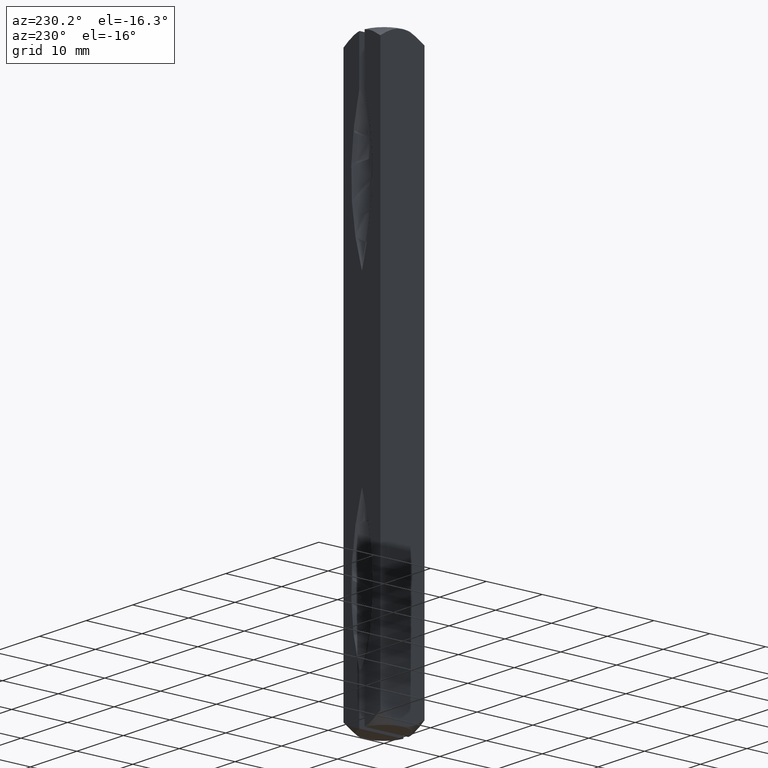
[diagram: clean part render]
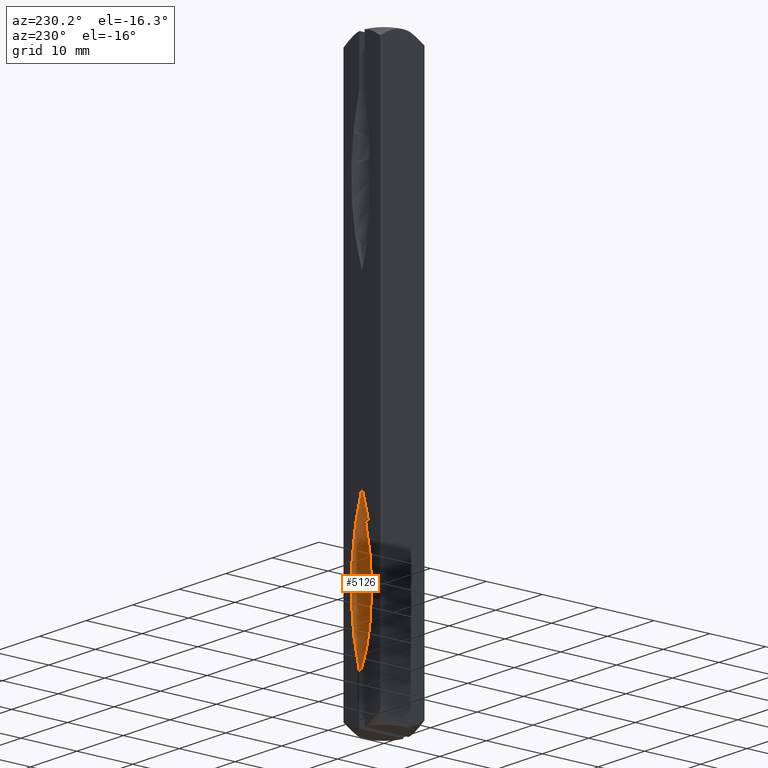
[diagram: same view with one face highlighted and labeled with its STEP entity id]
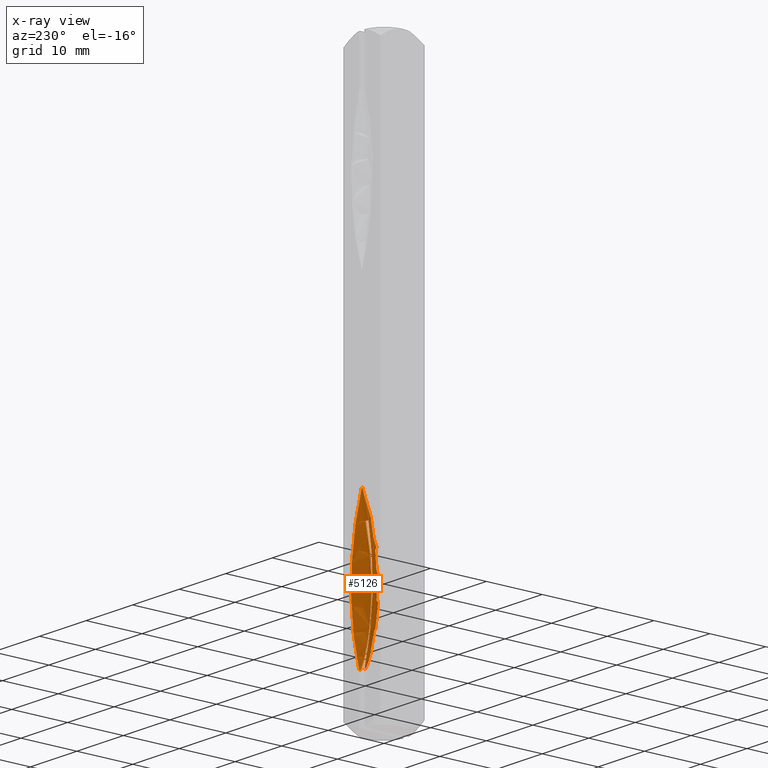
[diagram: x-ray of the same camera — body ghosted, the highlighted face saturated]
A machine part, auxiliary view. The second image highlights one B-rep face of the part: STEP entity #5126.
The next image is the same camera in x-ray: the body ghosted, the highlighted face saturated — about 0% of this face is hidden behind the body in this view.
In plain terms, the highlighted toroidal blend (fillet) surface has major radius 41.4587 mm and minor (blend) radius 43.7587 mm.
Its self-contained STEP definition (entity closure, byte-faithful):
#88 = CARTESIAN_POINT ( 'NONE',  ( 0.5749999999999997335, 2.429968106696501096, -21.78651875056223730 ) ) ;
#290 = CARTESIAN_POINT ( 'NONE',  ( 0.5749999999999996225, 3.418226339073121345, -40.93769629883396277 ) ) ;
#380 = CARTESIAN_POINT ( 'NONE',  ( 0.5749999999999996225, 3.950000000000000178, -41.66519112057019925 ) ) ;
#826 = CARTESIAN_POINT ( 'NONE',  ( -0.5750000000000002887, 1.790522158601205227, -31.89218784807994922 ) ) ;
#873 = CARTESIAN_POINT ( 'NONE',  ( -0.5749999999999999556, 2.999569653012168935, -39.64785277818430131 ) ) ;
#997 = VERTEX_POINT ( 'NONE', #11162 ) ;
#1009 = CARTESIAN_POINT ( 'NONE',  ( 0.5749999999999998446, 2.130042562530008787, -23.58545922957388186 ) ) ;
#1208 = CARTESIAN_POINT ( 'NONE',  ( 0.5749999999999999556, 2.018900622271412537, -34.57466454406282708 ) ) ;
#1400 = CIRCLE ( 'NONE', #6655, 43.75869565217392676 ) ;
#1435 = EDGE_LOOP ( 'NONE', ( #10017, #7549, #2135, #1601, #9818 ) ) ;
#1564 = AXIS2_PLACEMENT_3D ( 'NONE', #4280, #1592, #11255 ) ;
#1592 = DIRECTION ( 'NONE',  ( -1.097926250618232642E-16, 1.000000000000000000, -0.000000000000000000 ) ) ;
#1601 = ORIENTED_EDGE ( 'NONE', *, *, #5082, .T. ) ;
#1757 = CARTESIAN_POINT ( 'NONE',  ( -0.5750000000000000666, 2.656006524776936217, -38.31868199677725073 ) ) ;
#1777 = CARTESIAN_POINT ( 'NONE',  ( 0.000000000000000000, 3.950000000000000178, -20.00000000000000355 ) ) ;
#1786 = CARTESIAN_POINT ( 'NONE',  ( -0.5750000000000000666, 1.717738489092452525, -30.14765667200343913 ) ) ;
#1924 = CARTESIAN_POINT ( 'NONE',  ( 0.5750000000000000666, 1.752741313846989613, -31.10247213723761561 ) ) ;
#2004 = CARTESIAN_POINT ( 'NONE',  ( 0.5749999999999999556, 1.762029260111473983, -31.33131226829906879 ) ) ;
#2047 = CARTESIAN_POINT ( 'NONE',  ( 0.5749999999999996225, 3.714853797911729316, -41.50689434541931178 ) ) ;
#2135 = ORIENTED_EDGE ( 'NONE', *, *, #7399, .T. ) ;
#2366 = CARTESIAN_POINT ( 'NONE',  ( -0.5750000000000002887, 3.568300370325551807, -41.26436420200637656 ) ) ;
#2503 = CARTESIAN_POINT ( 'NONE',  ( -0.5750000000000001776, 2.832976762361322898, -20.00000000000000355 ) ) ;
#2583 = CARTESIAN_POINT ( 'NONE',  ( -0.5750000000000001776, 2.471219910511959661, -37.42595704450668848 ) ) ;
#2606 = VERTEX_POINT ( 'NONE', #3558 ) ;
#2648 = CARTESIAN_POINT ( 'NONE',  ( -0.5750000000000000666, 2.001035175949065437, -24.57484465062620060 ) ) ;
#2750 = CARTESIAN_POINT ( 'NONE',  ( 0.5749999999999998446, 2.011698050703604856, -24.48871964632990483 ) ) ;
#2893 = CARTESIAN_POINT ( 'NONE',  ( 0.5749999999999997335, 1.881233041425730557, -33.18379399691699660 ) ) ;
#2926 = CARTESIAN_POINT ( 'NONE',  ( 0.5749999999999996225, 3.950000000000000178, -41.66519112057019925 ) ) ;
#2972 = CARTESIAN_POINT ( 'NONE',  ( 0.5749999999999999556, 1.784777666526436102, -31.78854486097393206 ) ) ;
#2991 = DIRECTION ( 'NONE',  ( 1.000000000000000000, 1.189288288960203285E-16, 0.000000000000000000 ) ) ;
#3015 = CARTESIAN_POINT ( 'NONE',  ( 0.5749999999999998446, 2.141740618282792052, -35.49938617945537089 ) ) ;
#3493 = CARTESIAN_POINT ( 'NONE',  ( 0.000000000000000000, 3.950000000000000178, -29.50000000000000355 ) ) ;
#3558 = CARTESIAN_POINT ( 'NONE',  ( -0.5750000000000002887, 3.950000000000557066, -41.66519112057266483 ) ) ;
#3575 = CARTESIAN_POINT ( 'NONE',  ( 0.5749999999999998446, 2.610368242112415249, -20.88993279988914509 ) ) ;
#3664 = AXIS2_PLACEMENT_3D ( 'NONE', #1777, #4475, #9034 ) ;
#3717 = CARTESIAN_POINT ( 'NONE',  ( 0.5749999999999999556, 1.715598200974848719, -29.95806234123621792 ) ) ;
#3791 = CARTESIAN_POINT ( 'NONE',  ( 0.5749999999999997335, 3.113908154326070488, -40.05588645929623226 ) ) ;
#4280 = CARTESIAN_POINT ( 'NONE',  ( -41.45869565217392960, 3.949999999999996181, -29.50000000000000355 ) ) ;
#4310 = CARTESIAN_POINT ( 'NONE',  ( -0.5750000000000002887, 1.818738552955122989, -32.34657570468970533 ) ) ;
#4475 = DIRECTION ( 'NONE',  ( 0.000000000000000000, 0.000000000000000000, -1.000000000000000000 ) ) ;
#4502 = FACE_OUTER_BOUND ( 'NONE', #1435, .T. ) ;
#4528 = CARTESIAN_POINT ( 'NONE',  ( 0.5749999999999998446, 1.834091365121487627, -26.30232285982825147 ) ) ;
#4632 = VERTEX_POINT ( 'NONE', #2503 ) ;
#4864 = CARTESIAN_POINT ( 'NONE',  ( -4.336808689942019708E-16, 3.950000000000000178, -15.50000000000000000 ) ) ;
#4907 = VERTEX_POINT ( 'NONE', #380 ) ;
#4909 = AXIS2_PLACEMENT_3D ( 'NONE', #3493, #9737, #8935 ) ;
#4996 = CARTESIAN_POINT ( 'NONE',  ( -0.5750000000000002887, 3.838175792654273000, -41.63303785578739280 ) ) ;
#5082 = EDGE_CURVE ( 'NONE', #6182, #4907, #7444, .T. ) ;
#5094 = EDGE_CURVE ( 'NONE', #2606, #4632, #5673, .T. ) ;
#5119 = CARTESIAN_POINT ( 'NONE',  ( -0.5750000000000001776, 3.752541703626187886, -41.55570475752237058 ) ) ;
#5126 = ADVANCED_FACE ( 'NONE', ( #4502 ), #10822, .F. ) ;
#5526 = CARTESIAN_POINT ( 'NONE',  ( 0.5749999999999998446, 3.891179524348201024, -41.66519112057021346 ) ) ;
#5605 = CARTESIAN_POINT ( 'NONE',  ( 0.5749999999999995115, 3.837430416879069384, -41.63266135821610447 ) ) ;
#5647 = CARTESIAN_POINT ( 'NONE',  ( 0.5749999999999995115, 3.617102303695336918, -41.36165755676435651 ) ) ;
#5673 = B_SPLINE_CURVE_WITH_KNOTS ( 'NONE', 3,
 ( #5980, #10502, #4996, #5119, #8571, #6935, #2366, #9645, #8608, #7758, #873, #1757, #2583, #7986, #10671, #7880, #6241, #4310, #7090, #8867, #826, #11537, #11490, #1786, #7121, #8028, #9845, #2648, #8817, #10624, #6148, #9799 ),
 .UNSPECIFIED., .F., .F.,
 ( 4, 2, 2, 2, 2, 2, 2, 2, 2, 2, 2, 2, 2, 2, 2, 4 ),
 ( 0.04013997765228428938, 0.04031446014983714604, 0.04048894264739000270, 0.04083790764249572297, 0.04153583763270715656, 0.04293169761313001681, 0.04572341757397576506, 0.04851513753482152025, 0.04991099751524438743, 0.05025996251035010076, 0.05060892750545581409, 0.05130685749566724074, 0.05409857745651294042, 0.05689029741735863316, 0.05968201737820433284, 0.06247373733905002557 ),
 .UNSPECIFIED. ) ;
#5980 = CARTESIAN_POINT ( 'NONE',  ( -0.5750000000000002887, 3.950000000000557066, -41.66519112057266483 ) ) ;
#6056 = B_SPLINE_CURVE_WITH_KNOTS ( 'NONE', 3,
 ( #6261, #3575, #88, #1009, #2750, #4528, #6335, #7226, #3717, #1924, #2004, #10961, #2972, #6522, #10999, #2893, #1208, #3015, #9156, #11069, #7460, #3791, #10913, #290, #7375, #5647, #2047, #10056, #5605, #5526, #2926 ),
 .UNSPECIFIED., .F., .F.,
 ( 4, 2, 2, 2, 2, 2, 2, 1, 2, 2, 2, 2, 2, 2, 2, 4 ),
 ( 0.03861330230306312533, 0.04140856419607732986, 0.04420382608909154132, 0.04699908798210574584, 0.04979434987511995037, 0.05049316534837350323, 0.05084257308500027273, 0.05119198082162704916, 0.05258961176813410632, 0.05538487366114823451, 0.05818013555416237659, 0.05957776650066944069, 0.06027658197392297967, 0.06062598971054974917, 0.06080069357886313391, 0.06097539744717651866 ),
 .UNSPECIFIED. ) ;
#6148 = CARTESIAN_POINT ( 'NONE',  ( -0.5750000000000001776, 2.607124633328429475, -20.90289993090307519 ) ) ;
#6182 = VERTEX_POINT ( 'NONE', #4864 ) ;
#6241 = CARTESIAN_POINT ( 'NONE',  ( -0.5750000000000001776, 1.858727775207912103, -32.91580771812270001 ) ) ;
#6261 = CARTESIAN_POINT ( 'NONE',  ( 0.5749999999999997335, 2.832976762361322454, -20.00000000000000355 ) ) ;
#6335 = CARTESIAN_POINT ( 'NONE',  ( 0.5749999999999998446, 1.774965218622260865, -27.21268196257252825 ) ) ;
#6522 = CARTESIAN_POINT ( 'NONE',  ( 0.5750000000000000666, 1.798040783058213021, -32.02138522722812297 ) ) ;
#6655 = AXIS2_PLACEMENT_3D ( 'NONE', #7433, #8207, #2991 ) ;
#6890 = EDGE_CURVE ( 'NONE', #997, #4632, #11365, .T. ) ;
#6935 = CARTESIAN_POINT ( 'NONE',  ( -0.5750000000000005107, 3.620210601659142213, -41.36696449408719189 ) ) ;
#7090 = CARTESIAN_POINT ( 'NONE',  ( -0.5750000000000002887, 1.811202399092227244, -32.23266033241277029 ) ) ;
#7121 = CARTESIAN_POINT ( 'NONE',  ( -0.5750000000000001776, 1.713741310024385456, -29.21709193567127016 ) ) ;
#7226 = CARTESIAN_POINT ( 'NONE',  ( 0.5749999999999998446, 1.715649538479814051, -29.04046507952160994 ) ) ;
#7375 = CARTESIAN_POINT ( 'NONE',  ( 0.5749999999999995115, 3.564389802798315632, -41.25664807164782388 ) ) ;
#7399 = EDGE_CURVE ( 'NONE', #2606, #6182, #1400, .T. ) ;
#7433 = CARTESIAN_POINT ( 'NONE',  ( 41.45869565217392960, 3.950000000000004619, -29.50000000000000355 ) ) ;
#7444 = CIRCLE ( 'NONE', #1564, 43.75869565217392676 ) ;
#7460 = CARTESIAN_POINT ( 'NONE',  ( 0.5749999999999997335, 2.987801897168272713, -39.60581038113797092 ) ) ;
#7549 = ORIENTED_EDGE ( 'NONE', *, *, #5094, .F. ) ;
#7758 = CARTESIAN_POINT ( 'NONE',  ( -0.5750000000000002887, 3.123804794351551450, -40.08805091065506332 ) ) ;
#7880 = CARTESIAN_POINT ( 'NONE',  ( -0.5750000000000001776, 1.898099659623143420, -33.37009079281760648 ) ) ;
#7986 = CARTESIAN_POINT ( 'NONE',  ( -0.5750000000000001776, 2.161638308738178527, -35.63154529835278339 ) ) ;
#8028 = CARTESIAN_POINT ( 'NONE',  ( -0.5750000000000001776, 1.767104975694737679, -27.35570147856964951 ) ) ;
#8207 = DIRECTION ( 'NONE',  ( -1.097926250618232642E-16, 1.000000000000000000, -0.000000000000000000 ) ) ;
#8571 = CARTESIAN_POINT ( 'NONE',  ( -0.5750000000000003997, 3.716727400158926997, -41.50931508105428236 ) ) ;
#8608 = CARTESIAN_POINT ( 'NONE',  ( -0.5750000000000000666, 3.345022024219240997, -40.73665252974367235 ) ) ;
#8817 = CARTESIAN_POINT ( 'NONE',  ( -0.5750000000000001776, 2.119995233940013435, -23.65323532807944673 ) ) ;
#8867 = CARTESIAN_POINT ( 'NONE',  ( -0.5750000000000005107, 1.797053306296788167, -32.00469167351272404 ) ) ;
#8935 = DIRECTION ( 'NONE',  ( -1.000000000000000000, 0.000000000000000000, 0.000000000000000000 ) ) ;
#9034 = DIRECTION ( 'NONE',  ( 1.000000000000000000, 0.000000000000000000, 0.000000000000000000 ) ) ;
#9156 = CARTESIAN_POINT ( 'NONE',  ( 0.5749999999999999556, 2.453523791816925925, -37.33831311765551675 ) ) ;
#9645 = CARTESIAN_POINT ( 'NONE',  ( -0.5750000000000003997, 3.423725090174374763, -40.95122227692382921 ) ) ;
#9737 = DIRECTION ( 'NONE',  ( -0.000000000000000000, -0.000000000000000000, 1.000000000000000000 ) ) ;
#9799 = CARTESIAN_POINT ( 'NONE',  ( -0.5750000000000001776, 2.832976762361322898, -20.00000000000000355 ) ) ;
#9818 = ORIENTED_EDGE ( 'NONE', *, *, #11167, .F. ) ;
#9845 = CARTESIAN_POINT ( 'NONE',  ( -0.5750000000000001776, 1.824528500665346886, -26.42545832768125535 ) ) ;
#10017 = ORIENTED_EDGE ( 'NONE', *, *, #6890, .T. ) ;
#10056 = CARTESIAN_POINT ( 'NONE',  ( 0.5749999999999996225, 3.750768038285001715, -41.55379764750886551 ) ) ;
#10502 = CARTESIAN_POINT ( 'NONE',  ( -0.5750000000000000666, 3.892085402762736734, -41.66519112057047636 ) ) ;
#10624 = CARTESIAN_POINT ( 'NONE',  ( -0.5750000000000000666, 2.423546255826428020, -21.81791955638477276 ) ) ;
#10671 = CARTESIAN_POINT ( 'NONE',  ( -0.5750000000000000666, 2.038517818991956609, -34.72960835983197825 ) ) ;
#10822 = TOROIDAL_SURFACE ( 'NONE', #4909, -41.45869565217392960, 43.75869565217392676 ) ;
#10913 = CARTESIAN_POINT ( 'NONE',  ( 0.5749999999999997335, 3.338265758960102580, -40.71829712493093467 ) ) ;
#10961 = CARTESIAN_POINT ( 'NONE',  ( 0.5749999999999999556, 1.778759328303095577, -31.67450951654241109 ) ) ;
#10999 = CARTESIAN_POINT ( 'NONE',  ( 0.5749999999999999556, 1.833610658234124058, -32.60322987113372761 ) ) ;
#11069 = CARTESIAN_POINT ( 'NONE',  ( 0.5749999999999998446, 2.640494055903904957, -38.25107675171013710 ) ) ;
#11162 = CARTESIAN_POINT ( 'NONE',  ( 0.5749999999999997335, 2.832976762361322454, -20.00000000000000355 ) ) ;
#11167 = EDGE_CURVE ( 'NONE', #997, #4907, #6056, .T. ) ;
#11255 = DIRECTION ( 'NONE',  ( 1.000000000000000000, 1.189288288960203285E-16, 0.000000000000000000 ) ) ;
#11365 = CIRCLE ( 'NONE', #3664, 1.256330336107822188 ) ;
#11490 = CARTESIAN_POINT ( 'NONE',  ( -0.5750000000000001776, 1.761122091421702285, -31.31069931396687878 ) ) ;
#11537 = CARTESIAN_POINT ( 'NONE',  ( -0.5750000000000001776, 1.771722377317427322, -31.54329966053413159 ) ) ;